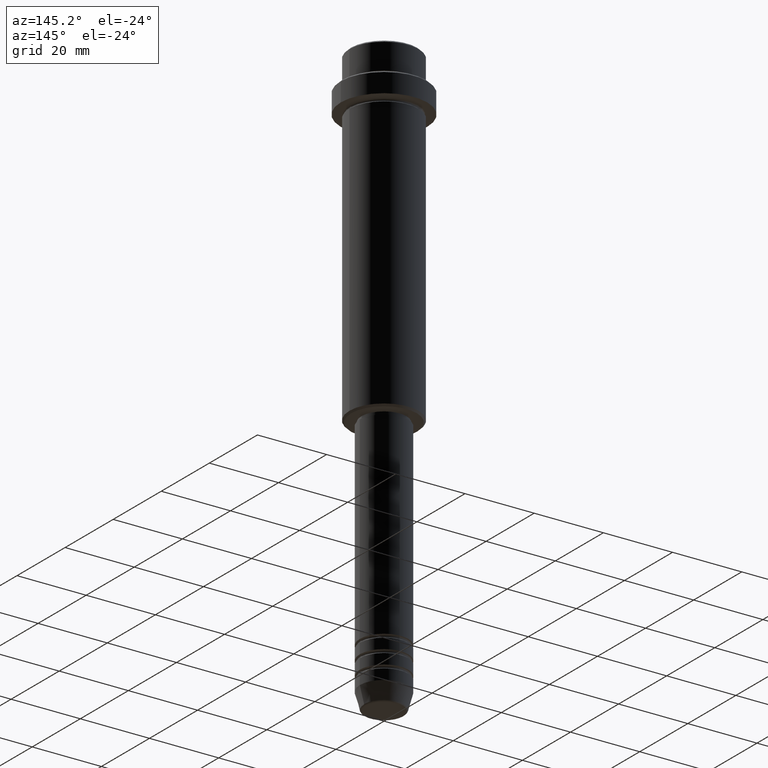
[diagram: clean part render]
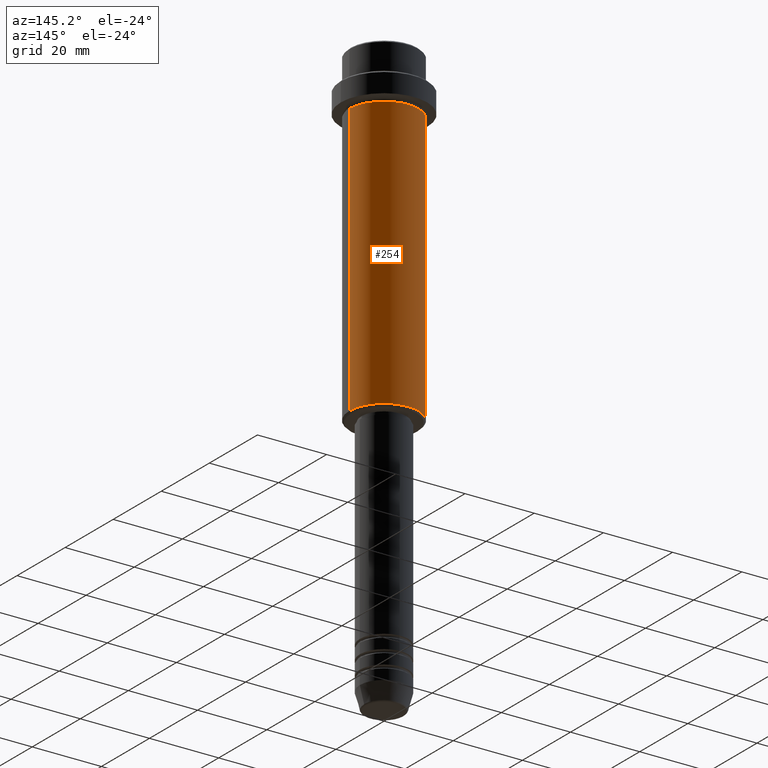
[diagram: same view with one face highlighted and labeled with its STEP entity id]
A machine part, auxiliary view. The second image highlights one B-rep face of the part: STEP entity #254.
In plain terms, the highlighted cylindrical surface (partial cylindrical patch) has radius 10 mm, axis along (-0, -0, 1).
Its self-contained STEP definition (entity closure, byte-faithful):
#48 = VERTEX_POINT ( 'NONE', #396 ) ;
#71 = LINE ( 'NONE', #166, #1163 ) ;
#110 = LINE ( 'NONE', #864, #1141 ) ;
#137 = CARTESIAN_POINT ( 'NONE',  ( 0.000000000000000000, 0.000000000000000000, -16.00000000000000000 ) ) ;
#166 = CARTESIAN_POINT ( 'NONE',  ( -10.00000000000000000, 1.224646799147353256E-15, 0.000000000000000000 ) ) ;
#213 = CARTESIAN_POINT ( 'NONE',  ( 0.000000000000000000, 0.000000000000000000, 0.000000000000000000 ) ) ;
#227 = EDGE_CURVE ( 'NONE', #1382, #1175, #110, .T. ) ;
#254 = ADVANCED_FACE ( 'NONE', ( #1401 ), #322, .T. ) ;
#267 = EDGE_LOOP ( 'NONE', ( #329, #619, #557, #294 ) ) ;
#294 = ORIENTED_EDGE ( 'NONE', *, *, #227, .F. ) ;
#322 = CYLINDRICAL_SURFACE ( 'NONE', #789, 10.00000000000000000 ) ;
#329 = ORIENTED_EDGE ( 'NONE', *, *, #1117, .T. ) ;
#396 = CARTESIAN_POINT ( 'NONE',  ( -10.00000000000000000, 1.224646799147353256E-15, -94.49999999999997158 ) ) ;
#404 = CARTESIAN_POINT ( 'NONE',  ( -10.00000000000000000, 1.224646799147353256E-15, -16.00000000000000000 ) ) ;
#490 = EDGE_CURVE ( 'NONE', #48, #1109, #71, .T. ) ;
#520 = CARTESIAN_POINT ( 'NONE',  ( 10.00000000000000000, 0.000000000000000000, -16.00000000000000000 ) ) ;
#535 = DIRECTION ( 'NONE',  ( -0.000000000000000000, -0.000000000000000000, 1.000000000000000000 ) ) ;
#557 = ORIENTED_EDGE ( 'NONE', *, *, #1046, .F. ) ;
#619 = ORIENTED_EDGE ( 'NONE', *, *, #490, .T. ) ;
#647 = DIRECTION ( 'NONE',  ( -1.000000000000000000, 0.000000000000000000, 0.000000000000000000 ) ) ;
#716 = DIRECTION ( 'NONE',  ( -0.000000000000000000, -0.000000000000000000, 1.000000000000000000 ) ) ;
#729 = CIRCLE ( 'NONE', #1234, 10.00000000000000000 ) ;
#789 = AXIS2_PLACEMENT_3D ( 'NONE', #213, #970, #958 ) ;
#820 = DIRECTION ( 'NONE',  ( 1.000000000000000000, 0.000000000000000000, 0.000000000000000000 ) ) ;
#864 = CARTESIAN_POINT ( 'NONE',  ( 10.00000000000000000, 0.000000000000000000, 0.000000000000000000 ) ) ;
#866 = AXIS2_PLACEMENT_3D ( 'NONE', #137, #716, #820 ) ;
#909 = CIRCLE ( 'NONE', #866, 10.00000000000000000 ) ;
#947 = DIRECTION ( 'NONE',  ( -0.000000000000000000, -0.000000000000000000, 1.000000000000000000 ) ) ;
#954 = CARTESIAN_POINT ( 'NONE',  ( 10.00000000000000000, 0.000000000000000000, -94.49999999999997158 ) ) ;
#958 = DIRECTION ( 'NONE',  ( 1.000000000000000000, 0.000000000000000000, 0.000000000000000000 ) ) ;
#969 = DIRECTION ( 'NONE',  ( -0.000000000000000000, -0.000000000000000000, 1.000000000000000000 ) ) ;
#970 = DIRECTION ( 'NONE',  ( -0.000000000000000000, -0.000000000000000000, 1.000000000000000000 ) ) ;
#1046 = EDGE_CURVE ( 'NONE', #1175, #1109, #909, .T. ) ;
#1109 = VERTEX_POINT ( 'NONE', #404 ) ;
#1117 = EDGE_CURVE ( 'NONE', #1382, #48, #729, .T. ) ;
#1141 = VECTOR ( 'NONE', #535, 1000.000000000000000 ) ;
#1163 = VECTOR ( 'NONE', #947, 1000.000000000000000 ) ;
#1175 = VERTEX_POINT ( 'NONE', #520 ) ;
#1234 = AXIS2_PLACEMENT_3D ( 'NONE', #1285, #969, #647 ) ;
#1285 = CARTESIAN_POINT ( 'NONE',  ( 0.000000000000000000, 0.000000000000000000, -94.49999999999997158 ) ) ;
#1382 = VERTEX_POINT ( 'NONE', #954 ) ;
#1401 = FACE_OUTER_BOUND ( 'NONE', #267, .T. ) ;